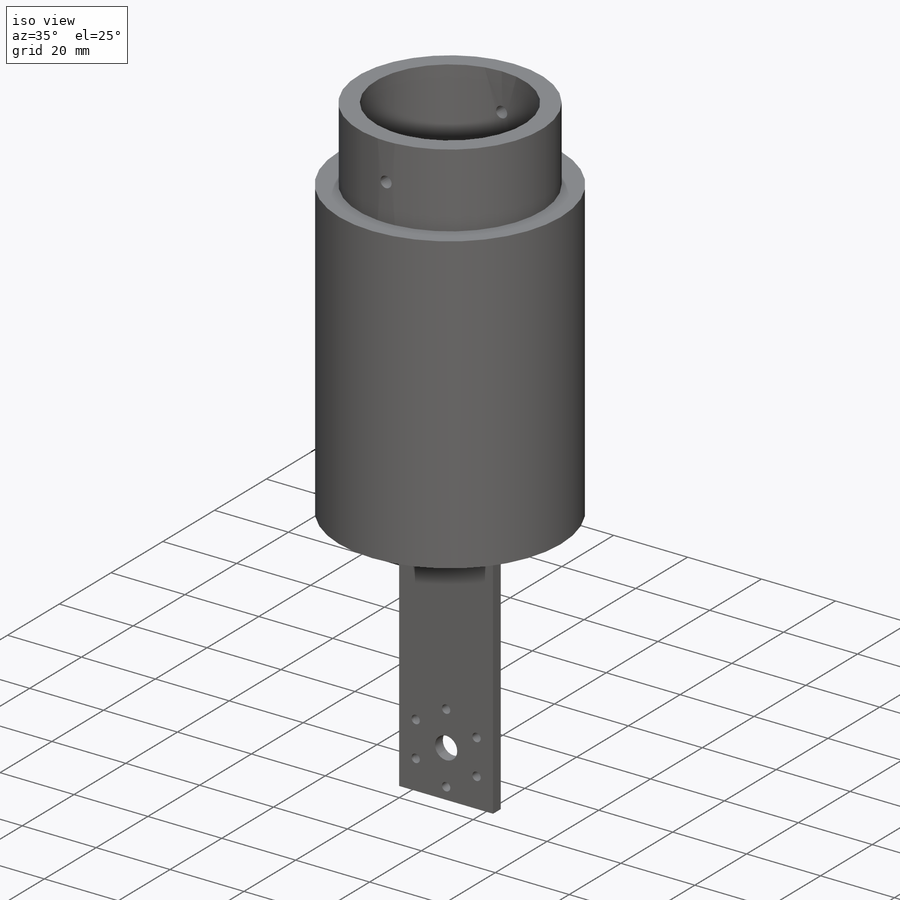
[diagram: iso view]
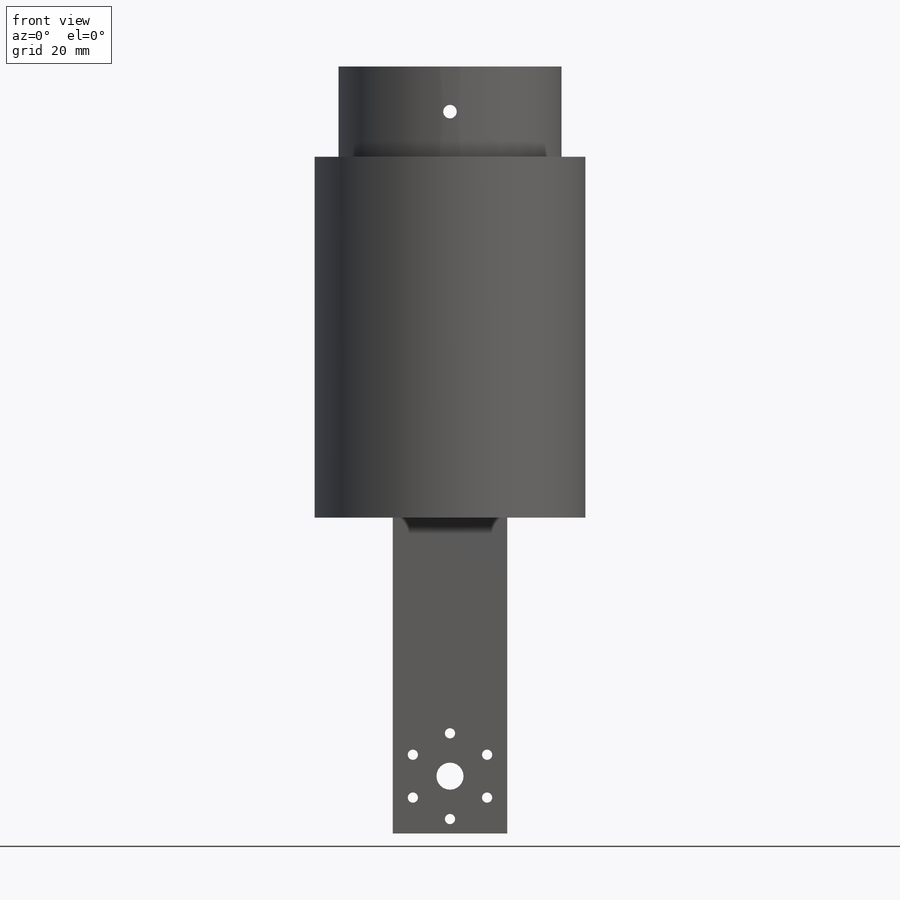
[diagram: front view]
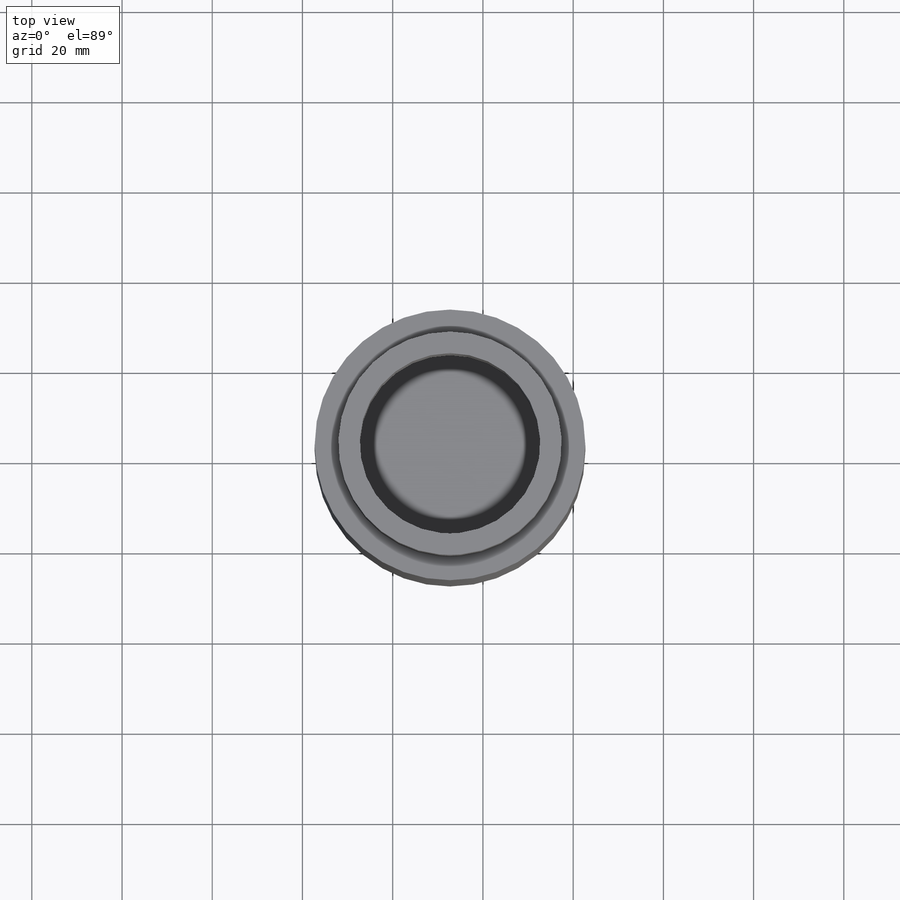
[diagram: top view]
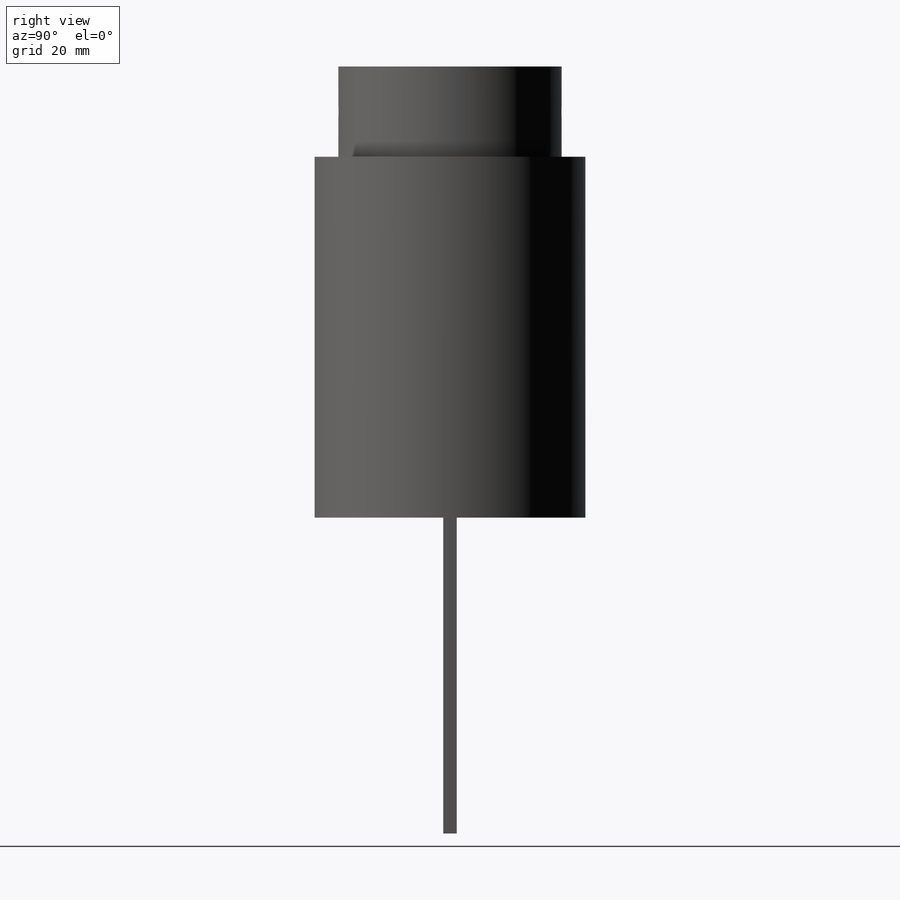
[diagram: right view]
SOLIDWORKS PART (.sldprt)
format: sldprt  version: not decoded by parser v0  size: 261,120 bytes
history: native  units: mm
features: sketch x9, thread x6, extrude x4, cut_extrude x3, material x1, hole x1 (+12 scaffold rows collapsed)
feature tree (36):
  scaffold x12  (default folders/planes/origin — collapsed)
  material  "Material <not specified>"
  sketch  "Sketch2"  dims[c1.D2=~4.752463mm c1.D1=25.4mm c2.D2=3.0mm c2.D3=3.0mm]
  extrude  "Boss-Extrude1"  Depth=70mm
  sketch  "Sketch3"  dims[c1.D2=6.0mm c1.D3=19.0mm c1.D4=2.8mm c1.D1=12.7mm c2.D2=~29.537568mm c2.D5=6.0]
  sketch  "Sketch4"  dims[D1=60.0mm]
  extrude  "Boss-Extrude2"  Depth=10mm
  sketch  "Sketch5"  dims[D1=40.0mm]
  extrude  "Boss-Extrude3"  Depth=70mm
  sketch  "Sketch8"  dims[D1=49.5mm D2=40.0mm]
  extrude  "Boss-Extrude4"  Depth=20mm
  sketch  "Sketch9"  dims[c1.D2=3.0mm c1.D1=10.0mm c2.D2=~78.423664mm]
  cut_extrude  "Cut-Extrude4"  [1 undecoded]
  hole  "#4-40 Tapped Hole1"  Diameter=2.2606mm Depth=7.6mm
  sketch  "Sketch11"
  sketch  "Sketch10"  dims[hole-wizard template sketch: 50 standard entries collapsed; hole parameters above]
  thread  "Hole Thread1"  Diameter=3mm  [1 undecoded]
  thread  "Hole Thread2"  Diameter=3mm  [1 undecoded]
  thread  "Hole Thread3"  Diameter=3mm  [1 undecoded]
  thread  "Hole Thread4"  Diameter=3mm  [1 undecoded]
  thread  "Hole Thread5"  Diameter=3mm  [1 undecoded]
  thread  "Hole Thread6"  Diameter=3mm  [1 undecoded]
  cut_extrude  "Cut-Extrude5"  Depth=10mm
  sketch  "Sketch12"  dims[D1=54.0mm D2=40.0mm]
  cut_extrude  "Cut-Extrude6"  Depth=60mm
decode coverage: 21 of 23 modeling features carry decoded parameters
note: ~ marks probable driven/reference dimensions
note: 7 parameter values undecoded
note: suppression state not decoded; provenance and decode notes live in map.json
